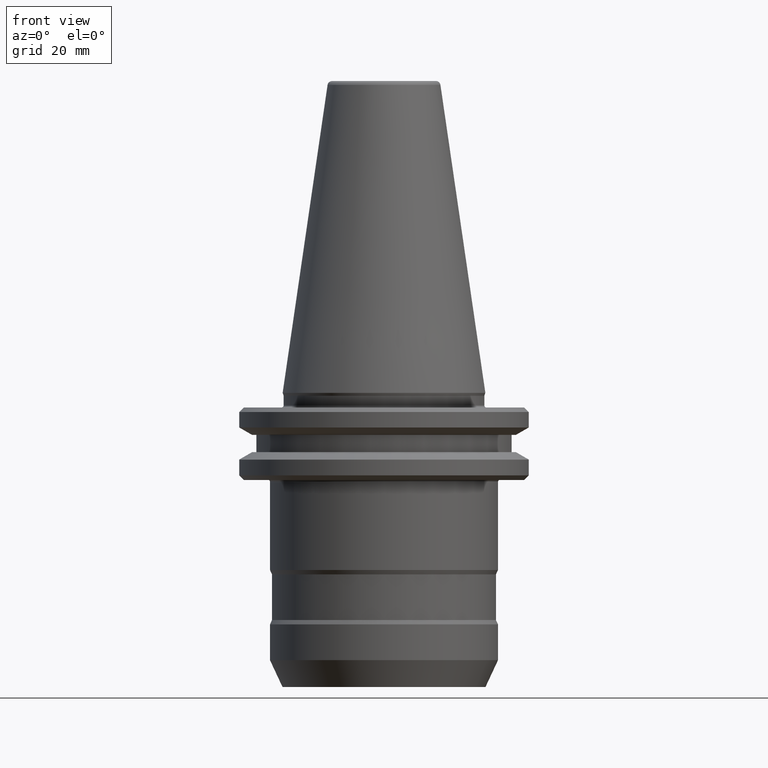
[diagram: clean part render]
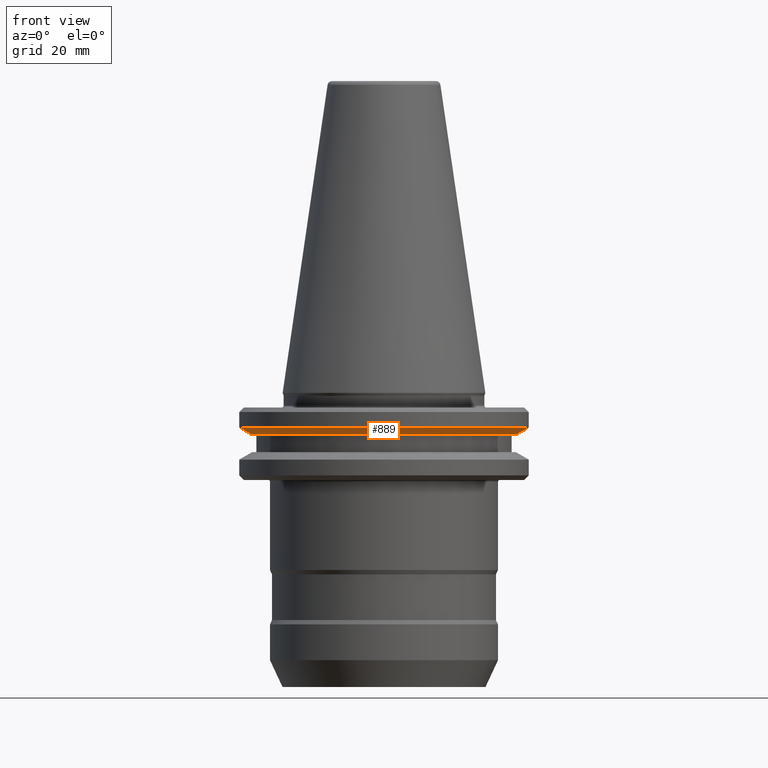
[diagram: same view with one face highlighted and labeled with its STEP entity id]
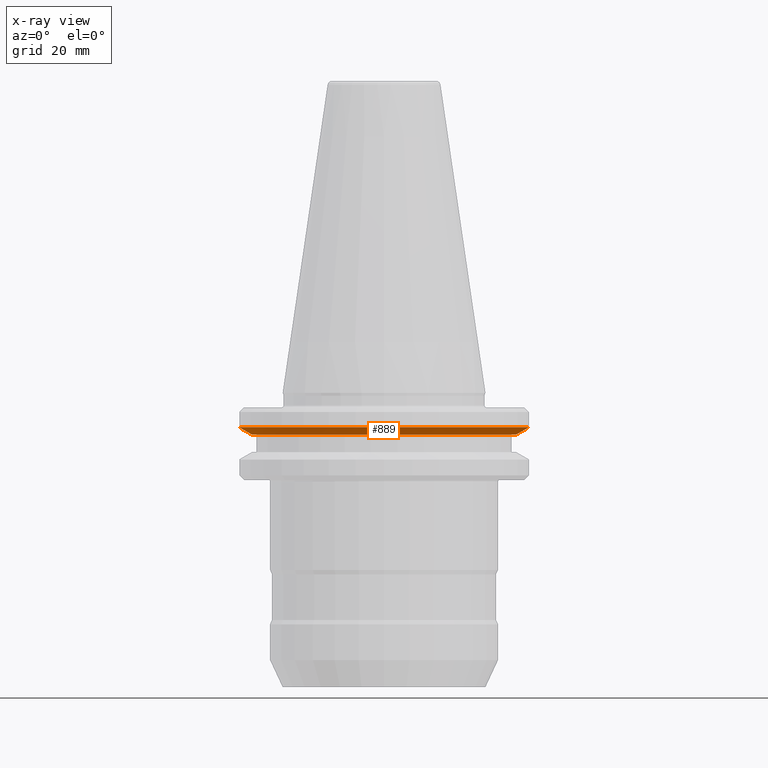
[diagram: x-ray of the same camera — body ghosted, the highlighted face saturated]
A machine part, front view. The second image highlights one B-rep face of the part: STEP entity #889.
The next image is the same camera in x-ray: the body ghosted, the highlighted face saturated — about 0% of this face is hidden behind the body in this view.
In plain terms, the highlighted conical surface has half-angle 60 deg.
Its self-contained STEP definition (entity closure, byte-faithful):
#6 = VERTEX_POINT ( 'NONE', #148 ) ;
#43 = EDGE_CURVE ( 'NONE', #563, #6, #1238, .T. ) ;
#61 = CIRCLE ( 'NONE', #1143, 28.94089653438167900 ) ;
#65 = CARTESIAN_POINT ( 'NONE',  ( 0.0000000000000000000, 0.0000000000000000000, -9.199999999993504900 ) ) ;
#112 = CARTESIAN_POINT ( 'NONE',  ( 0.0000000000000000000, 0.0000000000000000000, -9.199999999993504900 ) ) ;
#148 = CARTESIAN_POINT ( 'NONE',  ( 31.74999999999999300, 0.0000000000000000000, -7.578163357937247800 ) ) ;
#166 = DIRECTION ( 'NONE',  ( -1.000000000000000000, 0.0000000000000000000, 0.0000000000000000000 ) ) ;
#181 = EDGE_CURVE ( 'NONE', #6, #264, #320, .T. ) ;
#217 = CARTESIAN_POINT ( 'NONE',  ( 28.94089653438167900, 0.0000000000000000000, -9.199999999993504900 ) ) ;
#231 = VECTOR ( 'NONE', #267, 1000.000000000000000 ) ;
#240 = AXIS2_PLACEMENT_3D ( 'NONE', #593, #1007, #1058 ) ;
#243 = VERTEX_POINT ( 'NONE', #712 ) ;
#264 = VERTEX_POINT ( 'NONE', #524 ) ;
#267 = DIRECTION ( 'NONE',  ( -0.8660254037844370400, 1.060575238724904900E-016, 0.5000000000000027800 ) ) ;
#320 = CIRCLE ( 'NONE', #240, 31.74999999999999300 ) ;
#323 = EDGE_LOOP ( 'NONE', ( #959, #1120, #629, #814 ) ) ;
#371 = DIRECTION ( 'NONE',  ( 0.8660254037844370400, 0.0000000000000000000, 0.5000000000000027800 ) ) ;
#524 = CARTESIAN_POINT ( 'NONE',  ( -31.74999999999999300, 3.888253587292845700E-015, -7.578163357937247800 ) ) ;
#563 = VERTEX_POINT ( 'NONE', #217 ) ;
#593 = CARTESIAN_POINT ( 'NONE',  ( 0.0000000000000000000, 0.0000000000000000000, -7.578163357937247800 ) ) ;
#629 = ORIENTED_EDGE ( 'NONE', *, *, #43, .T. ) ;
#690 = DIRECTION ( 'NONE',  ( 0.0000000000000000000, 0.0000000000000000000, 1.000000000000000000 ) ) ;
#712 = CARTESIAN_POINT ( 'NONE',  ( -28.94089653438167900, 3.716245608910685200E-015, -9.199999999993504900 ) ) ;
#721 = EDGE_CURVE ( 'NONE', #563, #243, #61, .T. ) ;
#723 = VECTOR ( 'NONE', #371, 1000.000000000000000 ) ;
#742 = DIRECTION ( 'NONE',  ( -0.0000000000000000000, -0.0000000000000000000, -1.000000000000000000 ) ) ;
#811 = AXIS2_PLACEMENT_3D ( 'NONE', #112, #690, #1072 ) ;
#814 = ORIENTED_EDGE ( 'NONE', *, *, #181, .T. ) ;
#828 = CONICAL_SURFACE ( 'NONE', #811, 28.94089653438167900, 1.047197551196594500 ) ;
#843 = CARTESIAN_POINT ( 'NONE',  ( -28.94089653438167900, 3.544237630528524800E-015, -9.199999999993504900 ) ) ;
#867 = FACE_OUTER_BOUND ( 'NONE', #323, .T. ) ;
#889 = ADVANCED_FACE ( 'NONE', ( #867 ), #828, .T. ) ;
#954 = CARTESIAN_POINT ( 'NONE',  ( 28.94089653438167900, 0.0000000000000000000, -9.199999999993504900 ) ) ;
#959 = ORIENTED_EDGE ( 'NONE', *, *, #1148, .F. ) ;
#1007 = DIRECTION ( 'NONE',  ( -0.0000000000000000000, -0.0000000000000000000, -1.000000000000000000 ) ) ;
#1058 = DIRECTION ( 'NONE',  ( -1.000000000000000000, 0.0000000000000000000, 0.0000000000000000000 ) ) ;
#1072 = DIRECTION ( 'NONE',  ( 1.000000000000000000, 0.0000000000000000000, 0.0000000000000000000 ) ) ;
#1120 = ORIENTED_EDGE ( 'NONE', *, *, #721, .F. ) ;
#1125 = LINE ( 'NONE', #843, #231 ) ;
#1143 = AXIS2_PLACEMENT_3D ( 'NONE', #65, #742, #166 ) ;
#1148 = EDGE_CURVE ( 'NONE', #243, #264, #1125, .T. ) ;
#1238 = LINE ( 'NONE', #954, #723 ) ;